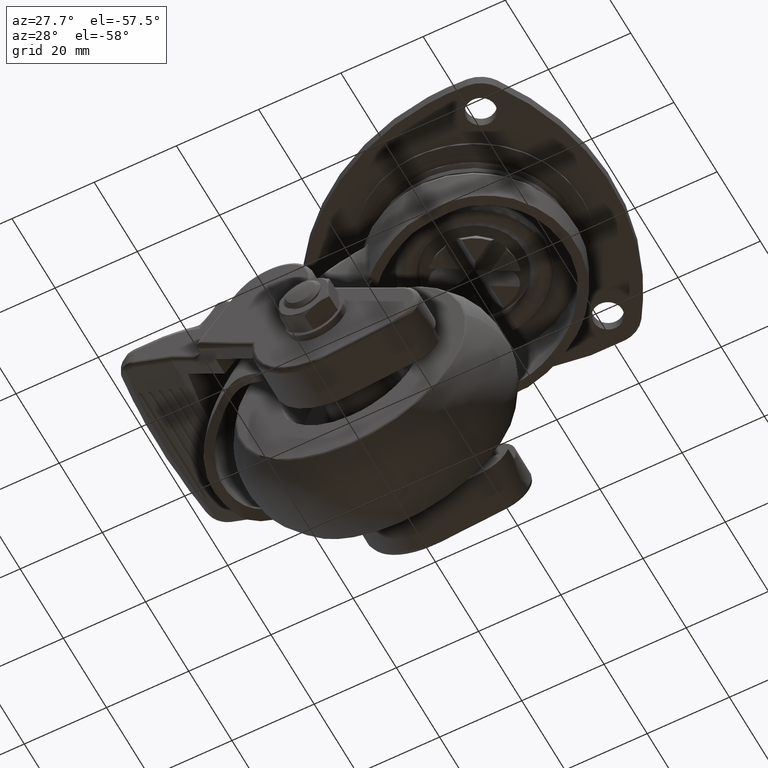
[diagram: clean part render]
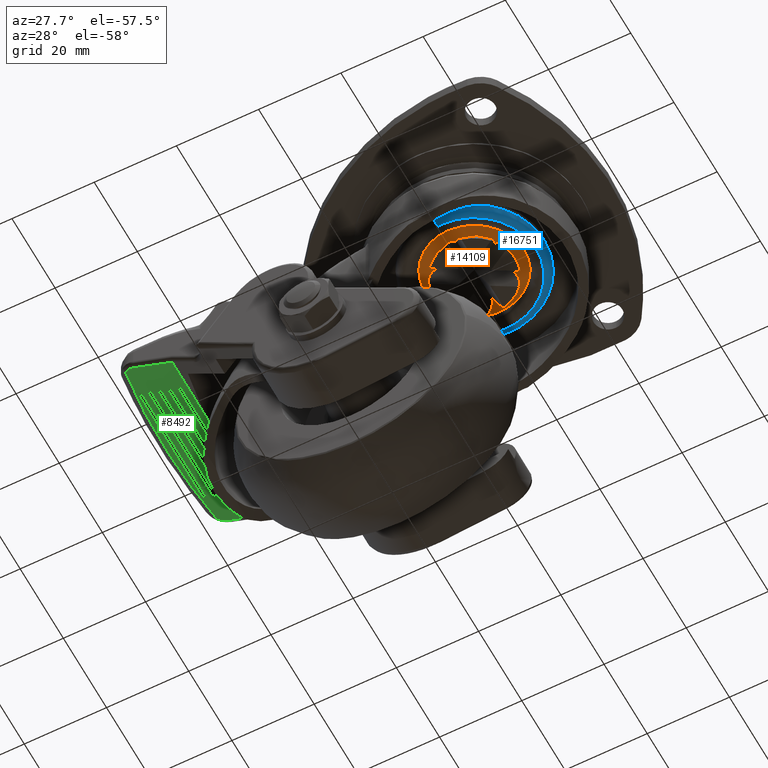
[diagram: same view with three faces highlighted in distinct colors, each labeled with its STEP entity id]
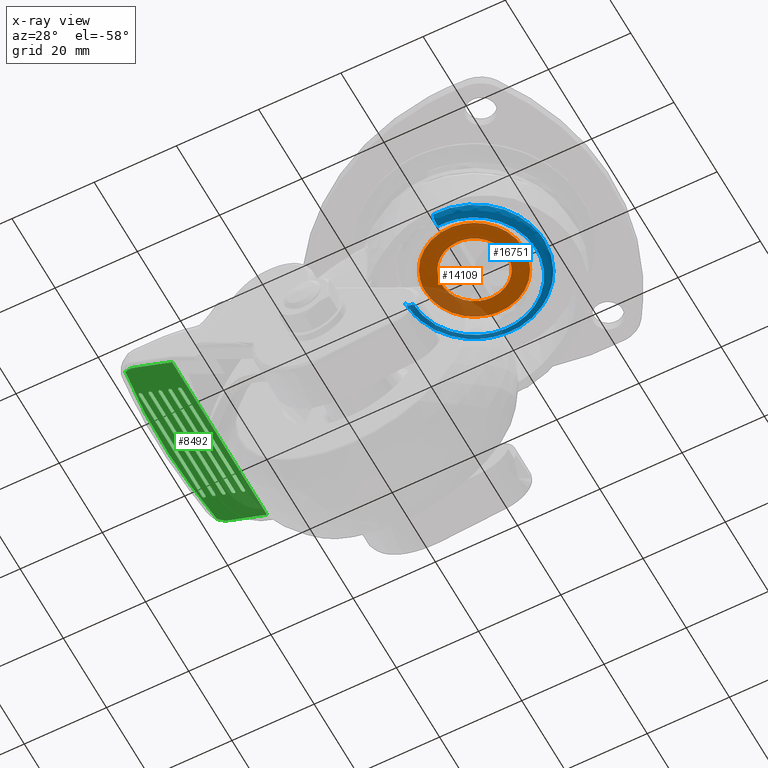
[diagram: x-ray of the same camera — body ghosted, the three highlighted faces saturated]
A machine part, auxiliary view with three faces highlighted in distinct colors.
The next image is the same camera in x-ray (body ghosted, the three faces saturated) — at least one of them is partly hidden behind the body in this view.
Their STEP definitions:

[orange] entity #14109 — the highlighted face is a freeform B-spline surface patch.
#13550=CARTESIAN_POINT('',(12.000000000000041,0.0,-21.699995000000001));
#13551=VERTEX_POINT('',#13550);
#13552=CARTESIAN_POINT('',(0.941509148789624,-11.963008004793110,-21.699995000000001));
#13553=VERTEX_POINT('',#13552);
#13554=CARTESIAN_POINT('',(12.000000000000041,0.0,-21.699995000000001));
#13555=CARTESIAN_POINT('',(12.000000000000043,-11.092685899795383,-21.699995000000001));
#13556=CARTESIAN_POINT('',(0.941509148789624,-11.963008004793117,-21.699994999999998));
#13564=(BOUNDED_CURVE()B_SPLINE_CURVE(2,(#13554,#13555,#13556),.UNSPECIFIED.,.F.,.U.)B_SPLINE_CURVE_WITH_KNOTS((3,3),(0.500000000000000,0.736331300631178),.UNSPECIFIED.)CURVE()GEOMETRIC_REPRESENTATION_ITEM()RATIONAL_B_SPLINE_CURVE((1.0,0.723120658607058,0.969723356168501))REPRESENTATION_ITEM(''));
#13565=EDGE_CURVE('',#13551,#13553,#13564,.T.);
#13567=CARTESIAN_POINT('',(-0.941509148789614,11.963008004793220,-21.699995000000001));
#13568=VERTEX_POINT('',#13567);
#13569=CARTESIAN_POINT('',(-0.941509148789614,11.963008004793229,-21.699995000000005));
#13570=CARTESIAN_POINT('',(-0.471481284147743,12.0,-21.699995000000001));
#13571=CARTESIAN_POINT('',(4.263256E-014,12.0,-21.699995000000001));
#13572=CARTESIAN_POINT('',(12.000000000000043,12.0,-21.699995000000005));
#13573=CARTESIAN_POINT('',(12.000000000000041,0.0,-21.699995000000001));
#13581=(BOUNDED_CURVE()B_SPLINE_CURVE(2,(#13569,#13570,#13571,#13572,#13573),.UNSPECIFIED.,.F.,.U.)B_SPLINE_CURVE_WITH_KNOTS((3,2,3),(0.236331300631176,0.250000000000000,0.500000000000000),.UNSPECIFIED.)CURVE()GEOMETRIC_REPRESENTATION_ITEM()RATIONAL_B_SPLINE_CURVE((0.969723356168497,0.983986122579488,1.0,0.707106781186548,1.0))REPRESENTATION_ITEM(''));
#13582=EDGE_CURVE('',#13568,#13551,#13581,.T.);
#13618=CARTESIAN_POINT('',(-11.999999999999959,0.0,-21.699995000000001));
#13619=VERTEX_POINT('',#13618);
#13620=CARTESIAN_POINT('',(0.941509148789624,-11.963008004793112,-21.699995000000005));
#13621=CARTESIAN_POINT('',(0.471481284147795,-11.999999999999995,-21.699994999999998));
#13622=CARTESIAN_POINT('',(4.263256E-014,-12.0,-21.699995000000001));
#13623=CARTESIAN_POINT('',(-11.999999999999957,-12.0,-21.699995000000005));
#13624=CARTESIAN_POINT('',(-11.999999999999959,0.0,-21.699995000000001));
#13632=(BOUNDED_CURVE()B_SPLINE_CURVE(2,(#13620,#13621,#13622,#13623,#13624),.UNSPECIFIED.,.F.,.U.)B_SPLINE_CURVE_WITH_KNOTS((3,2,3),(0.736331300631177,0.750000000000000,1.0),.UNSPECIFIED.)CURVE()GEOMETRIC_REPRESENTATION_ITEM()RATIONAL_B_SPLINE_CURVE((0.969723356168498,0.983986122579489,1.0,0.707106781186548,1.0))REPRESENTATION_ITEM(''));
#13633=EDGE_CURVE('',#13553,#13619,#13632,.T.);
#13640=CARTESIAN_POINT('',(-11.999999999999959,0.0,-21.699995000000001));
#13641=CARTESIAN_POINT('',(-11.999999999999956,11.092685899795248,-21.699994999999994));
#13642=CARTESIAN_POINT('',(-0.941509148789614,11.963008004793222,-21.699995000000005));
#13650=(BOUNDED_CURVE()B_SPLINE_CURVE(2,(#13640,#13641,#13642),.UNSPECIFIED.,.F.,.U.)B_SPLINE_CURVE_WITH_KNOTS((3,3),(0.0,0.236331300631176),.UNSPECIFIED.)CURVE()GEOMETRIC_REPRESENTATION_ITEM()RATIONAL_B_SPLINE_CURVE((1.0,0.723120658607060,0.969723356168496))REPRESENTATION_ITEM(''));
#13651=EDGE_CURVE('',#13619,#13568,#13650,.T.);
#13673=CARTESIAN_POINT('',(-6.928203230275540,4.0,-21.699995000000001));
#13674=VERTEX_POINT('',#13673);
#13789=CARTESIAN_POINT('',(6.928203230275650,-4.000000000000116,-21.699995000000001));
#13790=VERTEX_POINT('',#13789);
#13905=CARTESIAN_POINT('',(6.928203230275430,3.999999999999950,-21.699995000000001));
#13906=VERTEX_POINT('',#13905);
#13963=CARTESIAN_POINT('',(-6.928203230275770,-4.000000000000116,-21.699995000000001));
#13964=VERTEX_POINT('',#13963);
#14014=CARTESIAN_POINT('',(13.198799953483389,-13.195137032722180,-21.699995000000001));
#14015=CARTESIAN_POINT('',(-13.198800597213459,-13.195137032722180,-21.699995000000001));
#14016=CARTESIAN_POINT('',(13.198799953483389,13.195137676452349,-21.699995000000001));
#14017=CARTESIAN_POINT('',(-13.198800597213459,13.195137676452349,-21.699995000000001));
#14018=B_SPLINE_SURFACE_WITH_KNOTS('',1,1,((#14014,#14016),(#14015,#14017)),.UNSPECIFIED.,.F.,.F.,.U.,(2,2),(2,2),(0.0,26.397600550696851),(0.0,26.390274709174530),.UNSPECIFIED.);
#14019=ORIENTED_EDGE('',*,*,#13651,.T.);
#14020=ORIENTED_EDGE('',*,*,#13582,.T.);
#14021=ORIENTED_EDGE('',*,*,#13565,.T.);
#14022=ORIENTED_EDGE('',*,*,#13633,.T.);
#14023=EDGE_LOOP('',(#14019,#14020,#14021,#14022));
#14024=FACE_OUTER_BOUND('',#14023,.T.);
#14025=CARTESIAN_POINT('',(4.263256E-014,-8.0,-21.699995000000001));
#14026=VERTEX_POINT('',#14025);
#14027=CARTESIAN_POINT('',(6.928203230275650,-4.000000000000116,-21.699995000000001));
#14028=CARTESIAN_POINT('',(4.618802153517017,-8.0,-21.699994999999952));
#14029=CARTESIAN_POINT('',(4.263256E-014,-8.0,-21.699994999999952));
#14037=(BOUNDED_CURVE()B_SPLINE_CURVE(2,(#14027,#14028,#14029),.UNSPECIFIED.,.F.,.U.)CURVE()GEOMETRIC_REPRESENTATION_ITEM()QUASI_UNIFORM_CURVE()RATIONAL_B_SPLINE_CURVE((1.0,0.866025403784440,1.0))REPRESENTATION_ITEM(''));
#14038=EDGE_CURVE('',#13790,#14026,#14037,.T.);
#14039=ORIENTED_EDGE('',*,*,#14038,.F.);
#14040=CARTESIAN_POINT('',(6.928203230275430,3.999999999999950,-21.699995000000001));
#14041=CARTESIAN_POINT('',(9.237604307034077,-1.734723E-014,-21.699994999999944));
#14042=CARTESIAN_POINT('',(6.928203230275650,-4.000000000000116,-21.699995000000001));
#14050=(BOUNDED_CURVE()B_SPLINE_CURVE(2,(#14040,#14041,#14042),.UNSPECIFIED.,.F.,.U.)CURVE()GEOMETRIC_REPRESENTATION_ITEM()QUASI_UNIFORM_CURVE()RATIONAL_B_SPLINE_CURVE((1.0,0.866025403784437,1.0))REPRESENTATION_ITEM(''));
#14051=EDGE_CURVE('',#13906,#13790,#14050,.T.);
#14052=ORIENTED_EDGE('',*,*,#14051,.F.);
#14053=CARTESIAN_POINT('',(4.263256E-014,8.0,-21.699995000000001));
#14054=VERTEX_POINT('',#14053);
#14055=CARTESIAN_POINT('',(4.263256E-014,8.0,-21.699994999999952));
#14056=CARTESIAN_POINT('',(4.618802153517038,8.0,-21.699994999999952));
#14057=CARTESIAN_POINT('',(6.928203230275430,3.999999999999950,-21.699995000000001));
#14065=(BOUNDED_CURVE()B_SPLINE_CURVE(2,(#14055,#14056,#14057),.UNSPECIFIED.,.F.,.U.)CURVE()GEOMETRIC_REPRESENTATION_ITEM()QUASI_UNIFORM_CURVE()RATIONAL_B_SPLINE_CURVE((1.0,0.866025403784439,1.0))REPRESENTATION_ITEM(''));
#14066=EDGE_CURVE('',#14054,#13906,#14065,.T.);
#14067=ORIENTED_EDGE('',*,*,#14066,.F.);
#14068=CARTESIAN_POINT('',(-6.928203230275486,3.999999999999968,-21.699994999999952));
#14069=CARTESIAN_POINT('',(-4.618802153516988,8.0,-21.699994999999955));
#14070=CARTESIAN_POINT('',(4.263256E-014,8.0,-21.699994999999952));
#14078=(BOUNDED_CURVE()B_SPLINE_CURVE(2,(#14068,#14069,#14070),.UNSPECIFIED.,.F.,.U.)CURVE()GEOMETRIC_REPRESENTATION_ITEM()QUASI_UNIFORM_CURVE()RATIONAL_B_SPLINE_CURVE((1.0,0.866025403784438,1.0))REPRESENTATION_ITEM(''));
#14079=EDGE_CURVE('',#13674,#14054,#14078,.T.);
#14080=ORIENTED_EDGE('',*,*,#14079,.F.);
#14081=CARTESIAN_POINT('',(-6.928203230275770,-4.000000000000116,-21.699995000000001));
#14082=CARTESIAN_POINT('',(-9.237604307033941,1.040834E-014,-21.699994999999944));
#14083=CARTESIAN_POINT('',(-6.928203230275485,3.999999999999970,-21.699994999999952));
#14091=(BOUNDED_CURVE()B_SPLINE_CURVE(2,(#14081,#14082,#14083),.UNSPECIFIED.,.F.,.U.)CURVE()GEOMETRIC_REPRESENTATION_ITEM()QUASI_UNIFORM_CURVE()RATIONAL_B_SPLINE_CURVE((1.0,0.866025403784441,1.0))REPRESENTATION_ITEM(''));
#14092=EDGE_CURVE('',#13964,#13674,#14091,.T.);
#14093=ORIENTED_EDGE('',*,*,#14092,.F.);
#14094=CARTESIAN_POINT('',(4.263256E-014,-8.0,-21.699994999999952));
#14095=CARTESIAN_POINT('',(-4.618802153516999,-8.0,-21.699994999999955));
#14096=CARTESIAN_POINT('',(-6.928203230275770,-4.000000000000116,-21.699995000000001));
#14104=(BOUNDED_CURVE()B_SPLINE_CURVE(2,(#14094,#14095,#14096),.UNSPECIFIED.,.F.,.U.)CURVE()GEOMETRIC_REPRESENTATION_ITEM()QUASI_UNIFORM_CURVE()RATIONAL_B_SPLINE_CURVE((1.0,0.866025403784437,1.0))REPRESENTATION_ITEM(''));
#14105=EDGE_CURVE('',#14026,#13964,#14104,.T.);
#14106=ORIENTED_EDGE('',*,*,#14105,.F.);
#14107=EDGE_LOOP('',(#14039,#14052,#14067,#14080,#14093,#14106));
#14108=FACE_BOUND('',#14107,.T.);
#14109=ADVANCED_FACE('',(#14024,#14108),#14018,.T.);

[blue] entity #16751 — the highlighted face is a freeform B-spline surface patch.
#14975=CARTESIAN_POINT('',(17.0,0.0,-13.260379159228281));
#14976=VERTEX_POINT('',#14975);
#14977=CARTESIAN_POINT('',(11.110132898970740,12.867204318234700,-13.260379159227741));
#14978=VERTEX_POINT('',#14977);
#14979=CARTESIAN_POINT('',(17.0,0.0,-13.260379159228281));
#14980=CARTESIAN_POINT('',(17.000000000000007,7.781623594458412,-13.260379159228275));
#14981=CARTESIAN_POINT('',(11.110132898970740,12.867204318234702,-13.260379159227744));
#14989=(BOUNDED_CURVE()B_SPLINE_CURVE(2,(#14979,#14980,#14981),.UNSPECIFIED.,.F.,.U.)B_SPLINE_CURVE_WITH_KNOTS((3,3),(0.0,0.136042369939355),.UNSPECIFIED.)CURVE()GEOMETRIC_REPRESENTATION_ITEM()RATIONAL_B_SPLINE_CURVE((1.0,0.840616449493807,0.854696226509305))REPRESENTATION_ITEM(''));
#14990=EDGE_CURVE('',#14976,#14978,#14989,.T.);
#15048=CARTESIAN_POINT('',(0.445008121306036,16.994174524582579,-13.260379159228281));
#15049=VERTEX_POINT('',#15048);
#15055=CARTESIAN_POINT('',(-16.998657751463799,0.213622678099486,-13.260379409527360));
#15056=VERTEX_POINT('',#15055);
#15057=CARTESIAN_POINT('',(0.445008121306036,16.994174524582579,-13.260379159228279));
#15058=CARTESIAN_POINT('',(0.222542190514422,17.000000000000004,-13.260379159228277));
#15059=CARTESIAN_POINT('',(0.0,17.0,-13.260379159228281));
#15060=CARTESIAN_POINT('',(-16.787702808261368,16.999999999999996,-13.260379159228281));
#15061=CARTESIAN_POINT('',(-16.998657751463803,0.213622678099486,-13.260379409527358));
#15069=(BOUNDED_CURVE()B_SPLINE_CURVE(2,(#15057,#15058,#15059,#15060,#15061),.UNSPECIFIED.,.F.,.U.)B_SPLINE_CURVE_WITH_KNOTS((3,2,3),(0.245396693339510,0.250000000000000,0.497784295920021),.UNSPECIFIED.)CURVE()GEOMETRIC_REPRESENTATION_ITEM()RATIONAL_B_SPLINE_CURVE((0.989412390644931,0.994606890780094,1.0,0.709702639986240,0.994854295640083))REPRESENTATION_ITEM(''));
#15070=EDGE_CURVE('',#15049,#15056,#15069,.T.);
#15087=CARTESIAN_POINT('',(-1.185465276783836,-16.958616455287231,-13.260379409527440));
#15088=VERTEX_POINT('',#15087);
#15102=CARTESIAN_POINT('',(-1.185465276783835,-16.958616455287231,-13.260379409527445));
#15103=CARTESIAN_POINT('',(-0.593454969871431,-17.0,-13.260379159228284));
#15104=CARTESIAN_POINT('',(0.0,-17.0,-13.260379159228281));
#15105=CARTESIAN_POINT('',(17.000000000000004,-17.000000000000004,-13.260379159228281));
#15106=CARTESIAN_POINT('',(17.0,0.0,-13.260379159228281));
#15114=(BOUNDED_CURVE()B_SPLINE_CURVE(2,(#15102,#15103,#15104,#15105,#15106),.UNSPECIFIED.,.F.,.U.)B_SPLINE_CURVE_WITH_KNOTS((3,2,3),(0.737833686535108,0.750000000000000,1.0),.UNSPECIFIED.)CURVE()GEOMETRIC_REPRESENTATION_ITEM()RATIONAL_B_SPLINE_CURVE((0.972879876387010,0.985746277152697,1.0,0.707106781186548,1.0))REPRESENTATION_ITEM(''));
#15115=EDGE_CURVE('',#15088,#14976,#15114,.T.);
#15134=CARTESIAN_POINT('',(11.110132898970740,12.867204318234702,-13.260379159227744));
#15135=CARTESIAN_POINT('',(6.514553427737923,16.835237887176142,-13.260379159228279));
#15136=CARTESIAN_POINT('',(0.445008121306036,16.994174524582579,-13.260379159228279));
#15144=(BOUNDED_CURVE()B_SPLINE_CURVE(2,(#15134,#15135,#15136),.UNSPECIFIED.,.F.,.U.)B_SPLINE_CURVE_WITH_KNOTS((3,3),(0.136042369939355,0.245396693339510),.UNSPECIFIED.)CURVE()GEOMETRIC_REPRESENTATION_ITEM()RATIONAL_B_SPLINE_CURVE((0.854696226509305,0.866013910035704,0.989412390644931))REPRESENTATION_ITEM(''));
#15145=EDGE_CURVE('',#14978,#15049,#15144,.T.);
#16648=CARTESIAN_POINT('',(-1.036299825967873,-14.824749040127887,-15.255537858178188));
#16649=CARTESIAN_POINT('',(-0.612022287002005,-14.854407467302764,-15.255537858178188));
#16650=CARTESIAN_POINT('',(-0.186742980302309,-14.859751966011462,-15.255537858178188));
#16651=CARTESIAN_POINT('',(14.673008985709153,-15.046494946313771,-15.255537858178181));
#16652=CARTESIAN_POINT('',(14.859751966011462,-0.186742980302310,-15.255537858178188));
#16653=CARTESIAN_POINT('',(15.046494946313771,14.673008985709153,-15.255537858178181));
#16654=CARTESIAN_POINT('',(0.186742980302311,14.859751966011462,-15.255537858178188));
#16655=CARTESIAN_POINT('',(-14.673008985709147,15.046494946313771,-15.255537858178181));
#16656=CARTESIAN_POINT('',(-14.859751966011462,0.186742980302312,-15.255537858178188));
#16657=CARTESIAN_POINT('',(-1.196278201587132,-17.113313807749829,-15.415454008252050));
#16658=CARTESIAN_POINT('',(-0.706502985409842,-17.147550742885389,-15.415454008252050));
#16659=CARTESIAN_POINT('',(-0.215571354001166,-17.153720296467686,-15.415454008252048));
#16660=CARTESIAN_POINT('',(16.938148942466523,-17.369291650468860,-15.415454008252050));
#16661=CARTESIAN_POINT('',(17.153720296467686,-0.215571354001167,-15.415454008252048));
#16662=CARTESIAN_POINT('',(17.369291650468860,16.938148942466523,-15.415454008252050));
#16663=CARTESIAN_POINT('',(0.215571354001169,17.153720296467686,-15.415454008252048));
#16664=CARTESIAN_POINT('',(-16.938148942466519,17.369291650468860,-15.415454008252050));
#16665=CARTESIAN_POINT('',(-17.153720296467686,0.215571354001170,-15.415454008252048));
#16666=CARTESIAN_POINT('',(-1.185126741718835,-16.953787008810004,-13.121304536948243));
#16667=CARTESIAN_POINT('',(-0.699917109584154,-16.987704794263106,-13.121304536948244));
#16668=CARTESIAN_POINT('',(-0.213561842083530,-16.993816836533160,-13.121304536948244));
#16669=CARTESIAN_POINT('',(16.780254994449628,-17.207378678616688,-13.121304536948244));
#16670=CARTESIAN_POINT('',(16.993816836533160,-0.213561842083531,-13.121304536948244));
#16671=CARTESIAN_POINT('',(17.207378678616688,16.780254994449628,-13.121304536948244));
#16672=CARTESIAN_POINT('',(0.213561842083532,16.993816836533160,-13.121304536948244));
#16673=CARTESIAN_POINT('',(-16.780254994449628,17.207378678616688,-13.121304536948244));
#16674=CARTESIAN_POINT('',(-16.993816836533160,0.213561842083533,-13.121304536948244));
#16682=(BOUNDED_SURFACE()B_SPLINE_SURFACE(2,2,((#16648,#16657,#16666),(#16649,#16658,#16667),(#16650,#16659,#16668),(#16651,#16660,#16669),(#16652,#16661,#16670),(#16653,#16662,#16671),(#16654,#16663,#16672),(#16655,#16664,#16673),(#16656,#16665,#16674)),.UNSPECIFIED.,.F.,.F.,.U.)B_SPLINE_SURFACE_WITH_KNOTS((3,2,2,2,3),(3,3),(0.0,1.126338962541012,29.284839880105430,57.443340797669848,85.601841715234258),(0.0,3.644748868643993),.UNSPECIFIED.)GEOMETRIC_REPRESENTATION_ITEM()RATIONAL_B_SPLINE_SURFACE(((0.895729831234561,0.587800134052316,0.895729819879008),(0.905606589921446,0.594281508098050,0.905606578440681),(0.916342196299514,0.601326479302664,0.916342184682649),(0.647951780890761,0.425202031221946,0.647951772676397),(0.916342196299514,0.601326479302664,0.916342184682649),(0.647951780890761,0.425202031221946,0.647951772676397),(0.916342196299514,0.601326479302664,0.916342184682649),(0.647951780890761,0.425202031221946,0.647951772676397),(0.916342196299514,0.601326479302664,0.916342184682649)))REPRESENTATION_ITEM('')SURFACE());
#16683=CARTESIAN_POINT('',(15.0,0.0,-15.260379159228300));
#16684=VERTEX_POINT('',#16683);
#16685=CARTESIAN_POINT('',(-1.045998775780731,-14.963485124061799,-15.260379159228290));
#16686=VERTEX_POINT('',#16685);
#16687=CARTESIAN_POINT('',(15.0,0.0,-15.260379159228300));
#16688=CARTESIAN_POINT('',(14.999999999999996,-14.999999999999996,-15.260379159228293));
#16689=CARTESIAN_POINT('',(0.0,-15.0,-15.260379159228300));
#16690=CARTESIAN_POINT('',(-0.523636739118285,-15.0,-15.260379159228306));
#16691=CARTESIAN_POINT('',(-1.045998775780731,-14.963485124061803,-15.260379159228288));
#16699=(BOUNDED_CURVE()B_SPLINE_CURVE(2,(#16687,#16688,#16689,#16690,#16691),.UNSPECIFIED.,.F.,.U.)B_SPLINE_CURVE_WITH_KNOTS((3,2,3),(0.0,0.250000000000000,0.262166313487714),.UNSPECIFIED.)CURVE()GEOMETRIC_REPRESENTATION_ITEM()RATIONAL_B_SPLINE_CURVE((1.0,0.707106781186547,1.0,0.985746277125960,0.972879876338741))REPRESENTATION_ITEM(''));
#16700=EDGE_CURVE('',#16684,#16686,#16699,.T.);
#16701=ORIENTED_EDGE('',*,*,#16700,.F.);
#16702=CARTESIAN_POINT('',(-14.998815667251019,0.188490598434599,-15.260379159228290));
#16703=VERTEX_POINT('',#16702);
#16704=CARTESIAN_POINT('',(-14.998815667251021,0.188490598434599,-15.260379159228291));
#16705=CARTESIAN_POINT('',(-14.812678948349783,15.0,-15.260379159228297));
#16706=CARTESIAN_POINT('',(0.0,15.0,-15.260379159228300));
#16707=CARTESIAN_POINT('',(14.999999999999996,14.999999999999996,-15.260379159228293));
#16708=CARTESIAN_POINT('',(15.0,0.0,-15.260379159228300));
#16716=(BOUNDED_CURVE()B_SPLINE_CURVE(2,(#16704,#16705,#16706,#16707,#16708),.UNSPECIFIED.,.F.,.U.)B_SPLINE_CURVE_WITH_KNOTS((3,2,3),(0.502215704081358,0.750000000000000,1.0),.UNSPECIFIED.)CURVE()GEOMETRIC_REPRESENTATION_ITEM()RATIONAL_B_SPLINE_CURVE((0.994854295636910,0.709702639987855,1.0,0.707106781186547,1.0))REPRESENTATION_ITEM(''));
#16717=EDGE_CURVE('',#16703,#16684,#16716,.T.);
#16718=ORIENTED_EDGE('',*,*,#16717,.F.);
#16719=CARTESIAN_POINT('',(-14.998815667251012,0.188490598434599,-15.260379159228286));
#16720=CARTESIAN_POINT('',(-16.998657250906295,0.213622671726446,-15.260379150836759));
#16721=CARTESIAN_POINT('',(-16.998657751463803,0.213622678099486,-13.260379409527360));
#16729=(BOUNDED_CURVE()B_SPLINE_CURVE(2,(#16719,#16720,#16721),.UNSPECIFIED.,.F.,.U.)B_SPLINE_CURVE_WITH_KNOTS((3,3),(-1.734750787298609,-0.265249468425991),.UNSPECIFIED.)CURVE()GEOMETRIC_REPRESENTATION_ITEM()RATIONAL_B_SPLINE_CURVE((0.889029722031360,0.628638993075931,0.889029631404285))REPRESENTATION_ITEM(''));
#16730=EDGE_CURVE('',#16703,#15056,#16729,.T.);
#16731=ORIENTED_EDGE('',*,*,#16730,.T.);
#16732=ORIENTED_EDGE('',*,*,#15070,.F.);
#16733=ORIENTED_EDGE('',*,*,#15145,.F.);
#16734=ORIENTED_EDGE('',*,*,#14990,.F.);
#16735=ORIENTED_EDGE('',*,*,#15115,.F.);
#16736=CARTESIAN_POINT('',(-1.045998775780731,-14.963485124061798,-15.260379159228284));
#16737=CARTESIAN_POINT('',(-1.185465241874159,-16.958615955907717,-15.260379126098041));
#16738=CARTESIAN_POINT('',(-1.185465276783836,-16.958616455287228,-13.260379409527447));
#16746=(BOUNDED_CURVE()B_SPLINE_CURVE(2,(#16736,#16737,#16738),.UNSPECIFIED.,.F.,.U.)B_SPLINE_CURVE_WITH_KNOTS((3,3),(-1.734750774445672,-0.265249468426077),.UNSPECIFIED.)CURVE()GEOMETRIC_REPRESENTATION_ITEM()RATIONAL_B_SPLINE_CURVE((0.869031705912400,0.614498264564011,0.869031621776412))REPRESENTATION_ITEM(''));
#16747=EDGE_CURVE('',#16686,#15088,#16746,.T.);
#16748=ORIENTED_EDGE('',*,*,#16747,.F.);
#16749=EDGE_LOOP('',(#16701,#16718,#16731,#16732,#16733,#16734,#16735,#16748));
#16750=FACE_OUTER_BOUND('',#16749,.T.);
#16751=ADVANCED_FACE('',(#16750),#16682,.T.);

[green] entity #8492 — the highlighted face is a freeform B-spline surface patch.
#440=CARTESIAN_POINT('',(-63.493477917523592,14.550603000000001,-34.301184354644057));
#441=VERTEX_POINT('',#440);
#442=CARTESIAN_POINT('',(-64.372172034724414,14.550603000000020,-33.872616555994902));
#443=VERTEX_POINT('',#442);
#444=CARTESIAN_POINT('',(-63.493477917523492,14.550603000000020,-34.301184354644093));
#445=CARTESIAN_POINT('',(-63.493477917523492,14.832822434371318,-34.301184354644093));
#446=CARTESIAN_POINT('',(-63.713151446823687,14.973932151556969,-34.194042404981801));
#447=CARTESIAN_POINT('',(-63.932824976123889,15.115041868742628,-34.086900455319508));
#448=CARTESIAN_POINT('',(-64.152498505424106,14.973932151556980,-33.979758505657223));
#449=CARTESIAN_POINT('',(-64.372172034724315,14.832822434371330,-33.872616555994924));
#450=CARTESIAN_POINT('',(-64.372172034724315,14.550603000000020,-33.872616555994917));
#458=(BOUNDED_CURVE()B_SPLINE_CURVE(2,(#444,#445,#446,#447,#448,#449,#450),.UNSPECIFIED.,.F.,.U.)B_SPLINE_CURVE_WITH_KNOTS((3,2,2,3),(0.0,0.333333333333333,0.666666666666667,1.0),.UNSPECIFIED.)CURVE()GEOMETRIC_REPRESENTATION_ITEM()RATIONAL_B_SPLINE_CURVE((1.0,0.866025403784446,1.0,0.866025403784446,1.0,0.866025403784446,1.0))REPRESENTATION_ITEM(''));
#459=EDGE_CURVE('',#441,#443,#458,.T.);
#503=CARTESIAN_POINT('',(-65.888685452126197,14.550603000000001,-33.132963468310351));
#504=VERTEX_POINT('',#503);
#505=CARTESIAN_POINT('',(-66.772584477526195,14.550603000000020,-32.701857066061400));
#506=VERTEX_POINT('',#505);
#507=CARTESIAN_POINT('',(-65.888685452126239,14.550603000000020,-33.132963468310336));
#508=CARTESIAN_POINT('',(-65.888685452126239,14.834494149498518,-33.132963468310329));
#509=CARTESIAN_POINT('',(-66.109660208476214,14.976439724247779,-33.025186867748097));
#510=CARTESIAN_POINT('',(-66.330634964826189,15.118385298997042,-32.917410267185851));
#511=CARTESIAN_POINT('',(-66.551609721176192,14.976439724247790,-32.809633666623597));
#512=CARTESIAN_POINT('',(-66.772584477526166,14.834494149498543,-32.701857066061358));
#513=CARTESIAN_POINT('',(-66.772584477526166,14.550603000000020,-32.701857066061351));
#521=(BOUNDED_CURVE()B_SPLINE_CURVE(2,(#507,#508,#509,#510,#511,#512,#513),.UNSPECIFIED.,.F.,.U.)B_SPLINE_CURVE_WITH_KNOTS((3,2,2,3),(0.0,0.333333333333333,0.666666666666667,1.0),.UNSPECIFIED.)CURVE()GEOMETRIC_REPRESENTATION_ITEM()RATIONAL_B_SPLINE_CURVE((1.0,0.866025403784446,1.0,0.866025403784446,1.0,0.866025403784446,1.0))REPRESENTATION_ITEM(''));
#522=EDGE_CURVE('',#504,#506,#521,.T.);
#566=CARTESIAN_POINT('',(-68.283953578953302,14.550603000000001,-31.964713029171300));
#567=VERTEX_POINT('',#566);
#568=CARTESIAN_POINT('',(-69.172936328103603,14.550603000000020,-31.531127128933200));
#569=VERTEX_POINT('',#568);
#570=CARTESIAN_POINT('',(-68.283953578953273,14.550603000000020,-31.964713029171289));
#571=CARTESIAN_POINT('',(-68.283953578953273,14.836126942541334,-31.964713029171289));
#572=CARTESIAN_POINT('',(-68.506199266240827,14.978888913811989,-31.856316554111771));
#573=CARTESIAN_POINT('',(-68.728444953528410,15.121650885082662,-31.747920079052250));
#574=CARTESIAN_POINT('',(-68.950690640815978,14.978888913812010,-31.639523603992728));
#575=CARTESIAN_POINT('',(-69.172936328103546,14.836126942541346,-31.531127128933214));
#576=CARTESIAN_POINT('',(-69.172936328103546,14.550603000000020,-31.531127128933210));
#584=(BOUNDED_CURVE()B_SPLINE_CURVE(2,(#570,#571,#572,#573,#574,#575,#576),.UNSPECIFIED.,.F.,.U.)B_SPLINE_CURVE_WITH_KNOTS((3,2,2,3),(0.0,0.333333333333333,0.666666666666667,1.0),.UNSPECIFIED.)CURVE()GEOMETRIC_REPRESENTATION_ITEM()RATIONAL_B_SPLINE_CURVE((1.0,0.866025403784445,1.0,0.866025403784445,1.0,0.866025403784445,1.0))REPRESENTATION_ITEM(''));
#585=EDGE_CURVE('',#567,#569,#584,.T.);
#629=CARTESIAN_POINT('',(-70.679281264271097,14.550603000000001,-30.796433541412501));
#630=VERTEX_POINT('',#629);
#631=CARTESIAN_POINT('',(-71.573228620190292,14.550603000000020,-30.360426240424800));
#632=VERTEX_POINT('',#631);
#633=CARTESIAN_POINT('',(-70.679281264271125,14.550603000000020,-30.796433541412512));
#634=CARTESIAN_POINT('',(-70.679281264271125,14.837721477529968,-30.796433541412508));
#635=CARTESIAN_POINT('',(-70.902768103250907,14.981280716294950,-30.687431716165591));
#636=CARTESIAN_POINT('',(-71.126254942230702,15.124839955059940,-30.578429890918656));
#637=CARTESIAN_POINT('',(-71.349741781210497,14.981280716294959,-30.469428065671728));
#638=CARTESIAN_POINT('',(-71.573228620190292,14.837721477529977,-30.360426240424793));
#639=CARTESIAN_POINT('',(-71.573228620190292,14.550603000000020,-30.360426240424800));
#647=(BOUNDED_CURVE()B_SPLINE_CURVE(2,(#633,#634,#635,#636,#637,#638,#639),.UNSPECIFIED.,.F.,.U.)B_SPLINE_CURVE_WITH_KNOTS((3,2,2,3),(0.0,0.333333333333333,0.666666666666667,1.0),.UNSPECIFIED.)CURVE()GEOMETRIC_REPRESENTATION_ITEM()RATIONAL_B_SPLINE_CURVE((1.0,0.866025403784446,1.0,0.866025403784446,1.0,0.866025403784446,1.0))REPRESENTATION_ITEM(''));
#648=EDGE_CURVE('',#630,#632,#647,.T.);
#692=CARTESIAN_POINT('',(-64.372172034724414,-14.550603000000001,-33.872616555994902));
#693=VERTEX_POINT('',#692);
#694=CARTESIAN_POINT('',(-63.493477917523492,-14.550602999999960,-34.301184354644057));
#695=VERTEX_POINT('',#694);
#696=CARTESIAN_POINT('',(-64.372172034724315,-14.550602999999960,-33.872616555994917));
#697=CARTESIAN_POINT('',(-64.372172034724301,-15.039421399214405,-33.872616555994924));
#698=CARTESIAN_POINT('',(-63.932824976123896,-15.039421399214410,-34.086900455319501));
#699=CARTESIAN_POINT('',(-63.493477917523492,-15.039421399214405,-34.301184354644093));
#700=CARTESIAN_POINT('',(-63.493477917523492,-14.550602999999960,-34.301184354644093));
#708=(BOUNDED_CURVE()B_SPLINE_CURVE(2,(#696,#697,#698,#699,#700),.UNSPECIFIED.,.F.,.U.)B_SPLINE_CURVE_WITH_KNOTS((3,2,3),(0.0,0.500000000000000,1.0),.UNSPECIFIED.)CURVE()GEOMETRIC_REPRESENTATION_ITEM()RATIONAL_B_SPLINE_CURVE((1.0,0.707106781186548,1.0,0.707106781186548,1.0))REPRESENTATION_ITEM(''));
#709=EDGE_CURVE('',#693,#695,#708,.T.);
#753=CARTESIAN_POINT('',(-66.772584477526195,-14.550603000000001,-32.701857066061400));
#754=VERTEX_POINT('',#753);
#755=CARTESIAN_POINT('',(-65.888685452126197,-14.550602999999960,-33.132963468310351));
#756=VERTEX_POINT('',#755);
#757=CARTESIAN_POINT('',(-66.772584477526166,-14.550602999999960,-32.701857066061351));
#758=CARTESIAN_POINT('',(-66.772584477526166,-15.042316894750515,-32.701857066061351));
#759=CARTESIAN_POINT('',(-66.330634964826203,-15.042316894750510,-32.917410267185844));
#760=CARTESIAN_POINT('',(-65.888685452126239,-15.042316894750515,-33.132963468310336));
#761=CARTESIAN_POINT('',(-65.888685452126239,-14.550602999999960,-33.132963468310336));
#769=(BOUNDED_CURVE()B_SPLINE_CURVE(2,(#757,#758,#759,#760,#761),.UNSPECIFIED.,.F.,.U.)B_SPLINE_CURVE_WITH_KNOTS((3,2,3),(0.0,0.500000000000000,1.0),.UNSPECIFIED.)CURVE()GEOMETRIC_REPRESENTATION_ITEM()RATIONAL_B_SPLINE_CURVE((1.0,0.707106781186548,1.0,0.707106781186548,1.0))REPRESENTATION_ITEM(''));
#770=EDGE_CURVE('',#754,#756,#769,.T.);
#814=CARTESIAN_POINT('',(-69.172936328103603,-14.550603000000001,-31.531127128933200));
#815=VERTEX_POINT('',#814);
#816=CARTESIAN_POINT('',(-68.283953578953302,-14.550602999999960,-31.964713029171300));
#817=VERTEX_POINT('',#816);
#818=CARTESIAN_POINT('',(-69.172936328103546,-14.550602999999960,-31.531127128933210));
#819=CARTESIAN_POINT('',(-69.172936328103532,-15.045144975258902,-31.531127128933218));
#820=CARTESIAN_POINT('',(-68.728444953528410,-15.045144975258900,-31.747920079052250));
#821=CARTESIAN_POINT('',(-68.283953578953287,-15.045144975258902,-31.964713029171300));
#822=CARTESIAN_POINT('',(-68.283953578953273,-14.550602999999960,-31.964713029171289));
#830=(BOUNDED_CURVE()B_SPLINE_CURVE(2,(#818,#819,#820,#821,#822),.UNSPECIFIED.,.F.,.U.)B_SPLINE_CURVE_WITH_KNOTS((3,2,3),(0.0,0.500000000000000,1.0),.UNSPECIFIED.)CURVE()GEOMETRIC_REPRESENTATION_ITEM()RATIONAL_B_SPLINE_CURVE((1.0,0.707106781186547,1.0,0.707106781186547,1.0))REPRESENTATION_ITEM(''));
#831=EDGE_CURVE('',#815,#817,#830,.T.);
#875=CARTESIAN_POINT('',(-71.573228620190292,-14.550603000000001,-30.360426240424800));
#876=VERTEX_POINT('',#875);
#877=CARTESIAN_POINT('',(-70.679281264271097,-14.550602999999960,-30.796433541412501));
#878=VERTEX_POINT('',#877);
#879=CARTESIAN_POINT('',(-71.573228620190292,-14.550602999999960,-30.360426240424800));
#880=CARTESIAN_POINT('',(-71.573228620190292,-15.047906790873670,-30.360426240424797));
#881=CARTESIAN_POINT('',(-71.126254942230716,-15.047906790873659,-30.578429890918649));
#882=CARTESIAN_POINT('',(-70.679281264271125,-15.047906790873670,-30.796433541412501));
#883=CARTESIAN_POINT('',(-70.679281264271125,-14.550602999999960,-30.796433541412512));
#891=(BOUNDED_CURVE()B_SPLINE_CURVE(2,(#879,#880,#881,#882,#883),.UNSPECIFIED.,.F.,.U.)B_SPLINE_CURVE_WITH_KNOTS((3,2,3),(0.0,0.500000000000000,1.0),.UNSPECIFIED.)CURVE()GEOMETRIC_REPRESENTATION_ITEM()RATIONAL_B_SPLINE_CURVE((1.0,0.707106781186547,1.0,0.707106781186547,1.0))REPRESENTATION_ITEM(''));
#892=EDGE_CURVE('',#876,#878,#891,.T.);
#926=CARTESIAN_POINT('',(-64.372172034724414,14.550603000000020,-33.872616555994902));
#927=CARTESIAN_POINT('',(-64.372172034724414,-14.550603000000001,-33.872616555994902));
#928=QUASI_UNIFORM_CURVE('',1,(#926,#927),.UNSPECIFIED.,.F.,.U.);
#929=EDGE_CURVE('',#443,#693,#928,.T.);
#932=CARTESIAN_POINT('',(-63.493477917523492,-14.550602999999960,-34.301184354644057));
#933=CARTESIAN_POINT('',(-63.493477917523592,14.550603000000001,-34.301184354644057));
#934=QUASI_UNIFORM_CURVE('',1,(#932,#933),.UNSPECIFIED.,.F.,.U.);
#935=EDGE_CURVE('',#695,#441,#934,.T.);
#955=CARTESIAN_POINT('',(-66.772584477526195,14.550603000000020,-32.701857066061400));
#956=CARTESIAN_POINT('',(-66.772584477526195,-14.550603000000001,-32.701857066061400));
#957=QUASI_UNIFORM_CURVE('',1,(#955,#956),.UNSPECIFIED.,.F.,.U.);
#958=EDGE_CURVE('',#506,#754,#957,.T.);
#961=CARTESIAN_POINT('',(-65.888685452126197,-14.550602999999960,-33.132963468310351));
#962=CARTESIAN_POINT('',(-65.888685452126197,14.550603000000001,-33.132963468310351));
#963=QUASI_UNIFORM_CURVE('',1,(#961,#962),.UNSPECIFIED.,.F.,.U.);
#964=EDGE_CURVE('',#756,#504,#963,.T.);
#984=CARTESIAN_POINT('',(-69.172936328103603,14.550603000000020,-31.531127128933200));
#985=CARTESIAN_POINT('',(-69.172936328103603,-14.550603000000001,-31.531127128933200));
#986=QUASI_UNIFORM_CURVE('',1,(#984,#985),.UNSPECIFIED.,.F.,.U.);
#987=EDGE_CURVE('',#569,#815,#986,.T.);
#990=CARTESIAN_POINT('',(-68.283953578953302,-14.550602999999960,-31.964713029171300));
#991=CARTESIAN_POINT('',(-68.283953578953302,14.550603000000001,-31.964713029171300));
#992=QUASI_UNIFORM_CURVE('',1,(#990,#991),.UNSPECIFIED.,.F.,.U.);
#993=EDGE_CURVE('',#817,#567,#992,.T.);
#1013=CARTESIAN_POINT('',(-71.573228620190292,14.550603000000020,-30.360426240424800));
#1014=CARTESIAN_POINT('',(-71.573228620190292,-14.550603000000001,-30.360426240424800));
#1015=QUASI_UNIFORM_CURVE('',1,(#1013,#1014),.UNSPECIFIED.,.F.,.U.);
#1016=EDGE_CURVE('',#632,#876,#1015,.T.);
#1019=CARTESIAN_POINT('',(-70.679281264271097,-14.550602999999960,-30.796433541412501));
#1020=CARTESIAN_POINT('',(-70.679281264271097,14.550603000000001,-30.796433541412501));
#1021=QUASI_UNIFORM_CURVE('',1,(#1019,#1020),.UNSPECIFIED.,.F.,.U.);
#1022=EDGE_CURVE('',#878,#630,#1021,.T.);
#1052=CARTESIAN_POINT('',(-73.973462328718909,14.550603000000020,-29.189754250918650));
#1053=VERTEX_POINT('',#1052);
#1054=CARTESIAN_POINT('',(-73.074667754254094,14.550603000000001,-29.628125655311351));
#1055=VERTEX_POINT('',#1054);
#1056=CARTESIAN_POINT('',(-73.973462328718909,14.550603000000020,-29.189754250918678));
#1057=CARTESIAN_POINT('',(-73.973462328718909,14.839278298242743,-29.189754250918678));
#1058=CARTESIAN_POINT('',(-73.748763694026948,14.983615947364109,-29.299347108483470));
#1059=CARTESIAN_POINT('',(-73.524065059334987,15.127953596485471,-29.408939966048258));
#1060=CARTESIAN_POINT('',(-73.299366424643040,14.983615947364100,-29.518532823613040));
#1061=CARTESIAN_POINT('',(-73.074667789951107,14.839278298242730,-29.628125681177821));
#1062=CARTESIAN_POINT('',(-73.074667754254094,14.550603000000001,-29.628125655311351));
#1070=(BOUNDED_CURVE()B_SPLINE_CURVE(2,(#1056,#1057,#1058,#1059,#1060,#1061,#1062),.UNSPECIFIED.,.F.,.U.)B_SPLINE_CURVE_WITH_KNOTS((3,2,2,3),(0.0,0.333333333333333,0.666666666666667,1.0),.UNSPECIFIED.)CURVE()GEOMETRIC_REPRESENTATION_ITEM()RATIONAL_B_SPLINE_CURVE((1.0,0.866025403784435,1.0,0.866025403784435,1.0,0.866025403784435,1.0))REPRESENTATION_ITEM(''));
#1071=EDGE_CURVE('',#1053,#1055,#1070,.T.);
#1115=CARTESIAN_POINT('',(-73.973462328718909,-14.550603000000001,-29.189754250918650));
#1116=VERTEX_POINT('',#1115);
#1117=CARTESIAN_POINT('',(-73.074667789951107,-14.550602999999960,-29.628125681177799));
#1118=VERTEX_POINT('',#1117);
#1134=CARTESIAN_POINT('',(-73.074667789951093,-14.550602999999960,-29.628125681177821));
#1135=CARTESIAN_POINT('',(-73.074667789951093,-15.050603283446449,-29.628125681177817));
#1136=CARTESIAN_POINT('',(-73.524065059335001,-15.050603283446449,-29.408939966048251));
#1137=CARTESIAN_POINT('',(-73.973462328718909,-15.050603283446449,-29.189754250918682));
#1138=CARTESIAN_POINT('',(-73.973462328718909,-14.550602999999960,-29.189754250918678));
#1146=(BOUNDED_CURVE()B_SPLINE_CURVE(2,(#1134,#1135,#1136,#1137,#1138),.UNSPECIFIED.,.F.,.U.)B_SPLINE_CURVE_WITH_KNOTS((3,2,3),(0.0,0.500000000000000,1.0),.UNSPECIFIED.)CURVE()GEOMETRIC_REPRESENTATION_ITEM()RATIONAL_B_SPLINE_CURVE((1.0,0.707106781186547,1.0,0.707106781186547,1.0))REPRESENTATION_ITEM(''));
#1147=EDGE_CURVE('',#1118,#1116,#1146,.T.);
#1167=CARTESIAN_POINT('',(-73.074667789951107,-14.550602999999960,-29.628125681177799));
#1168=CARTESIAN_POINT('',(-73.074667754254094,14.550603000000001,-29.628125655311351));
#1169=QUASI_UNIFORM_CURVE('',1,(#1167,#1168),.UNSPECIFIED.,.F.,.U.);
#1170=EDGE_CURVE('',#1118,#1055,#1169,.T.);
#1173=CARTESIAN_POINT('',(-73.973462328718909,-14.550603000000001,-29.189754250918650));
#1174=CARTESIAN_POINT('',(-73.973462328718909,14.550603000000020,-29.189754250918650));
#1175=QUASI_UNIFORM_CURVE('',1,(#1173,#1174),.UNSPECIFIED.,.F.,.U.);
#1176=EDGE_CURVE('',#1116,#1053,#1175,.T.);
#2134=CARTESIAN_POINT('',(-61.989534999999997,-22.0,-35.034706399278150));
#2135=VERTEX_POINT('',#2134);
#2179=CARTESIAN_POINT('',(-71.342519181749495,-22.0,-30.472950763150749));
#2180=VERTEX_POINT('',#2179);
#2194=CARTESIAN_POINT('',(-61.989534999999997,-22.0,-35.034706399278150));
#2195=CARTESIAN_POINT('',(-71.342519181749495,-22.0,-30.472950763150749));
#2196=QUASI_UNIFORM_CURVE('',1,(#2194,#2195),.UNSPECIFIED.,.F.,.U.);
#2197=EDGE_CURVE('',#2135,#2180,#2196,.T.);
#2268=CARTESIAN_POINT('',(-73.760050560673193,-21.186776118888702,-29.293841809364601));
#2269=VERTEX_POINT('',#2268);
#2283=CARTESIAN_POINT('',(-71.342519181749495,-22.0,-30.472950763150848));
#2284=CARTESIAN_POINT('',(-72.688063464154396,-21.999999999999996,-29.816684902475423));
#2285=CARTESIAN_POINT('',(-73.760050560673179,-21.186776118888702,-29.293841809364821));
#2293=(BOUNDED_CURVE()B_SPLINE_CURVE(2,(#2283,#2284,#2285),.UNSPECIFIED.,.F.,.U.)CURVE()GEOMETRIC_REPRESENTATION_ITEM()QUASI_UNIFORM_CURVE()RATIONAL_B_SPLINE_CURVE((1.0,0.947811697997599,1.0))REPRESENTATION_ITEM(''));
#2294=EDGE_CURVE('',#2180,#2269,#2293,.T.);
#2535=CARTESIAN_POINT('',(-61.989534999999997,22.0,-35.034706399278150));
#2536=VERTEX_POINT('',#2535);
#2580=CARTESIAN_POINT('',(-71.342519181749495,22.0,-30.472950763150749));
#2581=VERTEX_POINT('',#2580);
#2603=CARTESIAN_POINT('',(-71.342519181749495,22.0,-30.472950763150749));
#2604=CARTESIAN_POINT('',(-61.989534999999997,22.0,-35.034706399278150));
#2605=QUASI_UNIFORM_CURVE('',1,(#2603,#2604),.UNSPECIFIED.,.F.,.U.);
#2606=EDGE_CURVE('',#2581,#2536,#2605,.T.);
#2669=CARTESIAN_POINT('',(-73.760050560673093,21.186776118888599,-29.293841809364650));
#2670=VERTEX_POINT('',#2669);
#2700=CARTESIAN_POINT('',(-73.760050560673321,21.186776118888599,-29.293841809364761));
#2701=CARTESIAN_POINT('',(-72.688063464154496,22.000000000000004,-29.816684902475377));
#2702=CARTESIAN_POINT('',(-71.342519181749537,22.0,-30.472950763150831));
#2710=(BOUNDED_CURVE()B_SPLINE_CURVE(2,(#2700,#2701,#2702),.UNSPECIFIED.,.F.,.U.)CURVE()GEOMETRIC_REPRESENTATION_ITEM()QUASI_UNIFORM_CURVE()RATIONAL_B_SPLINE_CURVE((1.0,0.947811697997564,1.0))REPRESENTATION_ITEM(''));
#2711=EDGE_CURVE('',#2670,#2581,#2710,.T.);
#2858=CARTESIAN_POINT('',(-73.760050560673108,-21.186776118888758,-29.293841809364650));
#2859=CARTESIAN_POINT('',(-77.205322449918427,-1.227629E-013,-27.613470266619643));
#2860=CARTESIAN_POINT('',(-73.760050560673108,21.186776118888591,-29.293841809364650));
#2868=(BOUNDED_CURVE()B_SPLINE_CURVE(2,(#2858,#2859,#2860),.UNSPECIFIED.,.F.,.U.)CURVE()GEOMETRIC_REPRESENTATION_ITEM()QUASI_UNIFORM_CURVE()RATIONAL_B_SPLINE_CURVE((1.0,0.987034873699257,1.0))REPRESENTATION_ITEM(''));
#2869=EDGE_CURVE('',#2269,#2670,#2868,.T.);
#7659=CARTESIAN_POINT('',(-61.989534999999002,0.0,-35.034706399276807));
#7660=VERTEX_POINT('',#7659);
#7943=CARTESIAN_POINT('',(-61.989534999999002,0.0,-35.034706399276807));
#7944=CARTESIAN_POINT('',(-61.989534999999997,-22.0,-35.034706399278150));
#7945=QUASI_UNIFORM_CURVE('',1,(#7943,#7944),.UNSPECIFIED.,.F.,.U.);
#7946=EDGE_CURVE('',#7660,#2135,#7945,.T.);
#8231=CARTESIAN_POINT('',(-61.989534999999997,22.0,-35.034706399278150));
#8232=CARTESIAN_POINT('',(-61.989534999999002,0.0,-35.034706399276807));
#8233=QUASI_UNIFORM_CURVE('',1,(#8231,#8232),.UNSPECIFIED.,.F.,.U.);
#8234=EDGE_CURVE('',#2536,#7660,#8233,.T.);
#8448=CARTESIAN_POINT('',(-61.316114827972513,-24.197799914719461,-35.363155395398813));
#8449=CARTESIAN_POINT('',(-76.144865270823900,-24.197799914719461,-28.130689842703909));
#8450=CARTESIAN_POINT('',(-61.316114827972513,24.197801094891432,-35.363155395398813));
#8451=CARTESIAN_POINT('',(-76.144865270823900,24.197801094891432,-28.130689842703909));
#8452=B_SPLINE_SURFACE_WITH_KNOTS('',1,1,((#8448,#8450),(#8449,#8451)),.UNSPECIFIED.,.F.,.F.,.U.,(2,2),(2,2),(0.0,16.498496830538340),(0.0,48.395601009610893),.UNSPECIFIED.);
#8453=ORIENTED_EDGE('',*,*,#7946,.T.);
#8454=ORIENTED_EDGE('',*,*,#2197,.T.);
#8455=ORIENTED_EDGE('',*,*,#2294,.T.);
#8456=ORIENTED_EDGE('',*,*,#2869,.T.);
#8457=ORIENTED_EDGE('',*,*,#2711,.T.);
#8458=ORIENTED_EDGE('',*,*,#2606,.T.);
#8459=ORIENTED_EDGE('',*,*,#8234,.T.);
#8460=EDGE_LOOP('',(#8453,#8454,#8455,#8456,#8457,#8458,#8459));
#8461=FACE_OUTER_BOUND('',#8460,.T.);
#8462=ORIENTED_EDGE('',*,*,#1022,.T.);
#8463=ORIENTED_EDGE('',*,*,#648,.T.);
#8464=ORIENTED_EDGE('',*,*,#1016,.T.);
#8465=ORIENTED_EDGE('',*,*,#892,.T.);
#8466=EDGE_LOOP('',(#8462,#8463,#8464,#8465));
#8467=FACE_BOUND('',#8466,.T.);
#8468=ORIENTED_EDGE('',*,*,#964,.T.);
#8469=ORIENTED_EDGE('',*,*,#522,.T.);
#8470=ORIENTED_EDGE('',*,*,#958,.T.);
#8471=ORIENTED_EDGE('',*,*,#770,.T.);
#8472=EDGE_LOOP('',(#8468,#8469,#8470,#8471));
#8473=FACE_BOUND('',#8472,.T.);
#8474=ORIENTED_EDGE('',*,*,#1170,.T.);
#8475=ORIENTED_EDGE('',*,*,#1071,.F.);
#8476=ORIENTED_EDGE('',*,*,#1176,.F.);
#8477=ORIENTED_EDGE('',*,*,#1147,.F.);
#8478=EDGE_LOOP('',(#8474,#8475,#8476,#8477));
#8479=FACE_BOUND('',#8478,.T.);
#8480=ORIENTED_EDGE('',*,*,#993,.T.);
#8481=ORIENTED_EDGE('',*,*,#585,.T.);
#8482=ORIENTED_EDGE('',*,*,#987,.T.);
#8483=ORIENTED_EDGE('',*,*,#831,.T.);
#8484=EDGE_LOOP('',(#8480,#8481,#8482,#8483));
#8485=FACE_BOUND('',#8484,.T.);
#8486=ORIENTED_EDGE('',*,*,#935,.T.);
#8487=ORIENTED_EDGE('',*,*,#459,.T.);
#8488=ORIENTED_EDGE('',*,*,#929,.T.);
#8489=ORIENTED_EDGE('',*,*,#709,.T.);
#8490=EDGE_LOOP('',(#8486,#8487,#8488,#8489));
#8491=FACE_BOUND('',#8490,.T.);
#8492=ADVANCED_FACE('',(#8461,#8467,#8473,#8479,#8485,#8491),#8452,.T.);